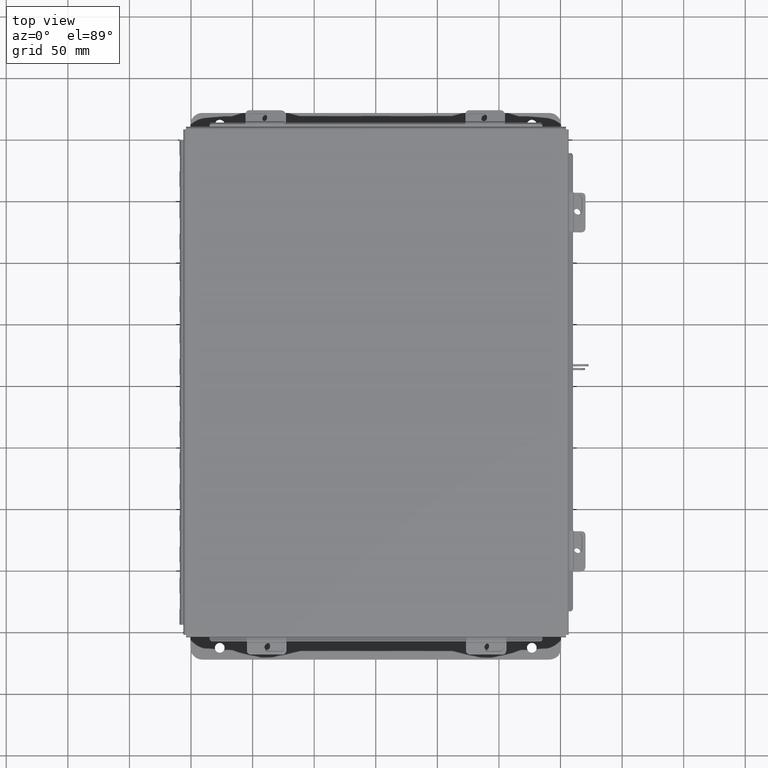
[diagram: clean part render]
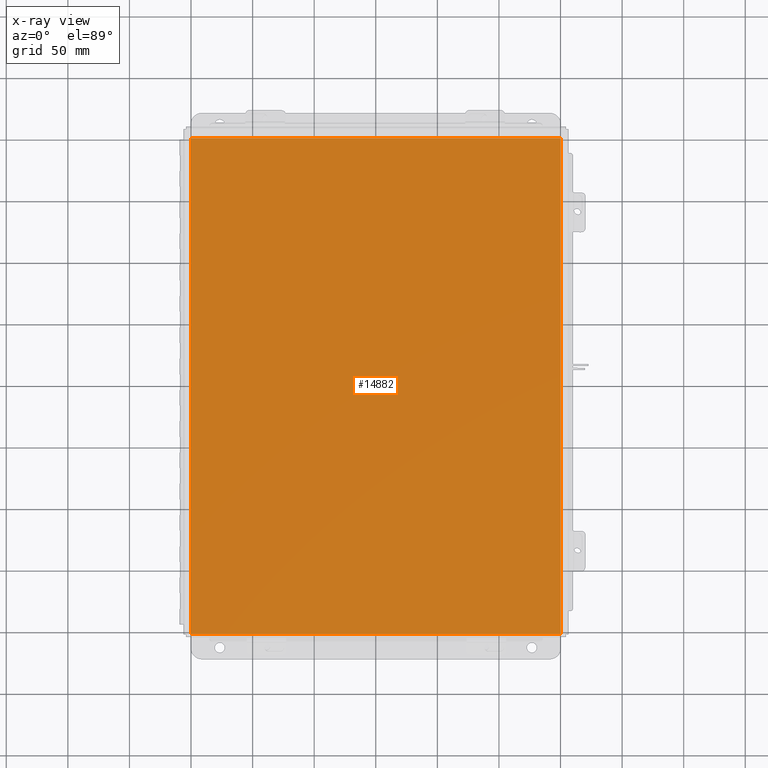
[diagram: x-ray — body ghosted, one internal face saturated and labeled with its STEP entity id]
A machine part, top view, then the same camera in x-ray: the body is ghosted and one INTERNAL B-rep face — a face not visible from any outside direction — is saturated and labeled: STEP entity #14882.
In plain terms, the highlighted planar face has unit normal (0, 0, -1).
Its self-contained STEP definition (entity closure, byte-faithful):
#432 = DIRECTION ( 'NONE',  ( -1.000000000000000000, 0.0000000000000000000, -0.0000000000000000000 ) ) ;
#1333 = LINE ( 'NONE', #12546, #15955 ) ;
#1449 = CARTESIAN_POINT ( 'NONE',  ( -6.000000000000000900, 7.925299999999998200, 0.0000000000000000000 ) ) ;
#2128 = LINE ( 'NONE', #15980, #14055 ) ;
#2777 = EDGE_CURVE ( 'NONE', #4612, #12539, #3582, .T. ) ;
#3186 = DIRECTION ( 'NONE',  ( 1.000000000000000000, 0.0000000000000000000, 0.0000000000000000000 ) ) ;
#3525 = ORIENTED_EDGE ( 'NONE', *, *, #9523, .T. ) ;
#3582 = LINE ( 'NONE', #8004, #19691 ) ;
#4612 = VERTEX_POINT ( 'NONE', #15064 ) ;
#4991 = ORIENTED_EDGE ( 'NONE', *, *, #12305, .F. ) ;
#5557 = CARTESIAN_POINT ( 'NONE',  ( -5.912300000000000100, 7.925299999999998200, 4.268512490100411300E-017 ) ) ;
#5838 = ORIENTED_EDGE ( 'NONE', *, *, #2777, .F. ) ;
#5930 = VERTEX_POINT ( 'NONE', #16461 ) ;
#7420 = CARTESIAN_POINT ( 'NONE',  ( 5.912300000000000100, 7.925299999999997300, 4.268512490100411300E-017 ) ) ;
#7602 = DIRECTION ( 'NONE',  ( -1.000000000000000000, -0.0000000000000000000, -0.0000000000000000000 ) ) ;
#8004 = CARTESIAN_POINT ( 'NONE',  ( -5.912300000000000100, -7.925300000000000900, 4.268512490100411300E-017 ) ) ;
#8398 = ORIENTED_EDGE ( 'NONE', *, *, #14728, .T. ) ;
#9523 = EDGE_CURVE ( 'NONE', #16358, #12539, #10265, .T. ) ;
#9732 = DIRECTION ( 'NONE',  ( 0.0000000000000000000, 0.0000000000000000000, -1.000000000000000000 ) ) ;
#10265 = LINE ( 'NONE', #1449, #18564 ) ;
#12305 = EDGE_CURVE ( 'NONE', #16358, #5930, #2128, .T. ) ;
#12539 = VERTEX_POINT ( 'NONE', #5557 ) ;
#12546 = CARTESIAN_POINT ( 'NONE',  ( -6.000000000000000900, -7.925300000000000000, 0.0000000000000000000 ) ) ;
#14055 = VECTOR ( 'NONE', #19096, 39.37007874015748100 ) ;
#14728 = EDGE_CURVE ( 'NONE', #4612, #5930, #1333, .T. ) ;
#14882 = ADVANCED_FACE ( 'NONE', ( #17908 ), #19089, .F. ) ;
#15064 = CARTESIAN_POINT ( 'NONE',  ( -5.912300000000000100, -7.925300000000000000, 4.268512490100411300E-017 ) ) ;
#15134 = DIRECTION ( 'NONE',  ( -0.0000000000000000000, 1.000000000000000000, -0.0000000000000000000 ) ) ;
#15955 = VECTOR ( 'NONE', #3186, 39.37007874015748100 ) ;
#15971 = CARTESIAN_POINT ( 'NONE',  ( 0.0000000000000000000, 0.0000000000000000000, 0.0000000000000000000 ) ) ;
#15980 = CARTESIAN_POINT ( 'NONE',  ( 5.912300000000000100, 7.925300000000000000, 4.268512490100411300E-017 ) ) ;
#16358 = VERTEX_POINT ( 'NONE', #7420 ) ;
#16461 = CARTESIAN_POINT ( 'NONE',  ( 5.912300000000000100, -7.925300000000000000, 4.268512490100411300E-017 ) ) ;
#17398 = EDGE_LOOP ( 'NONE', ( #4991, #3525, #5838, #8398 ) ) ;
#17908 = FACE_OUTER_BOUND ( 'NONE', #17398, .T. ) ;
#18564 = VECTOR ( 'NONE', #7602, 39.37007874015748100 ) ;
#19089 = PLANE ( 'NONE',  #19601 ) ;
#19096 = DIRECTION ( 'NONE',  ( -0.0000000000000000000, -1.000000000000000000, -0.0000000000000000000 ) ) ;
#19601 = AXIS2_PLACEMENT_3D ( 'NONE', #15971, #9732, #432 ) ;
#19691 = VECTOR ( 'NONE', #15134, 39.37007874015748100 ) ;